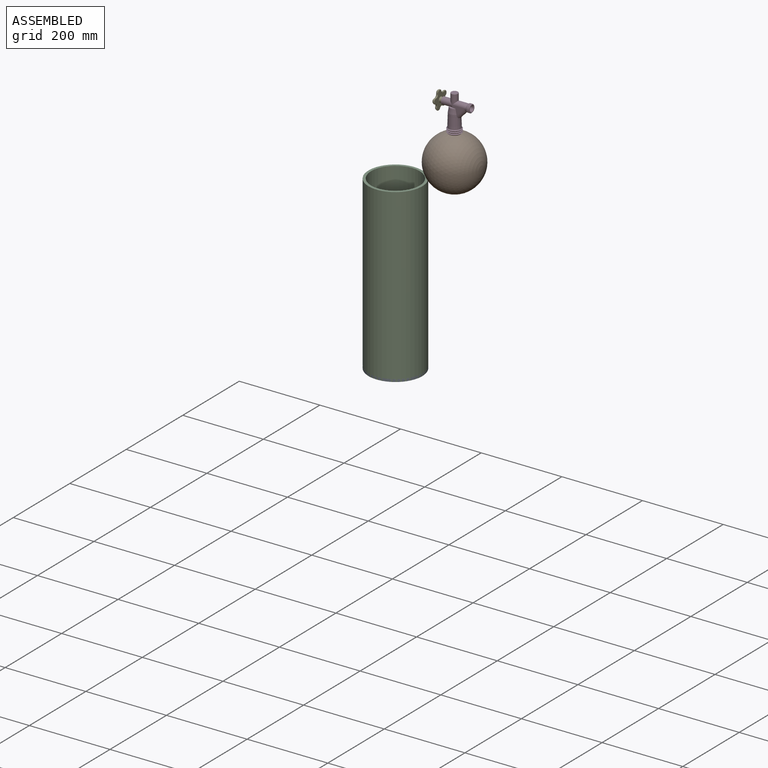
[diagram: assembled view]
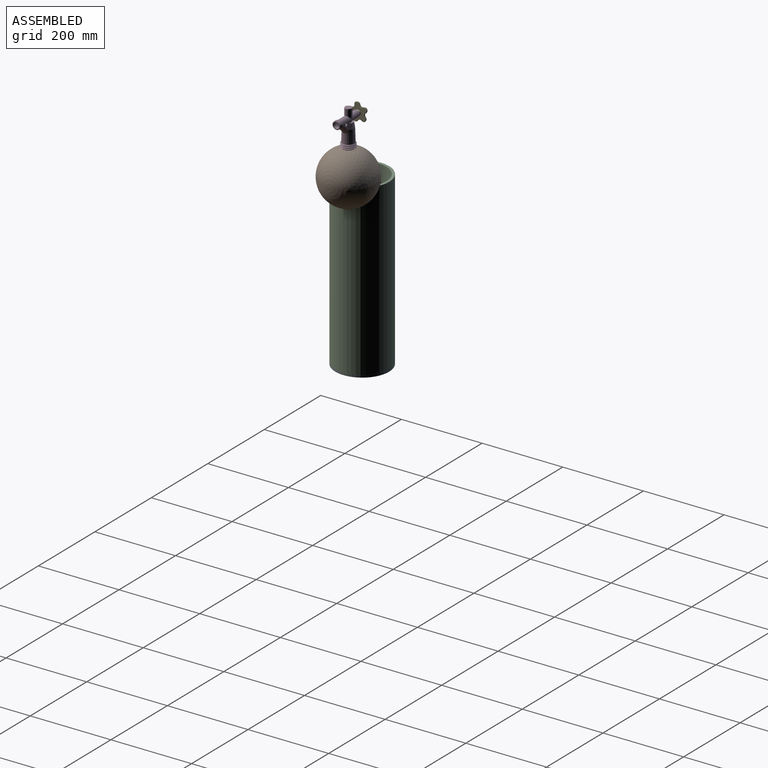
[diagram: assembled view, second angle]
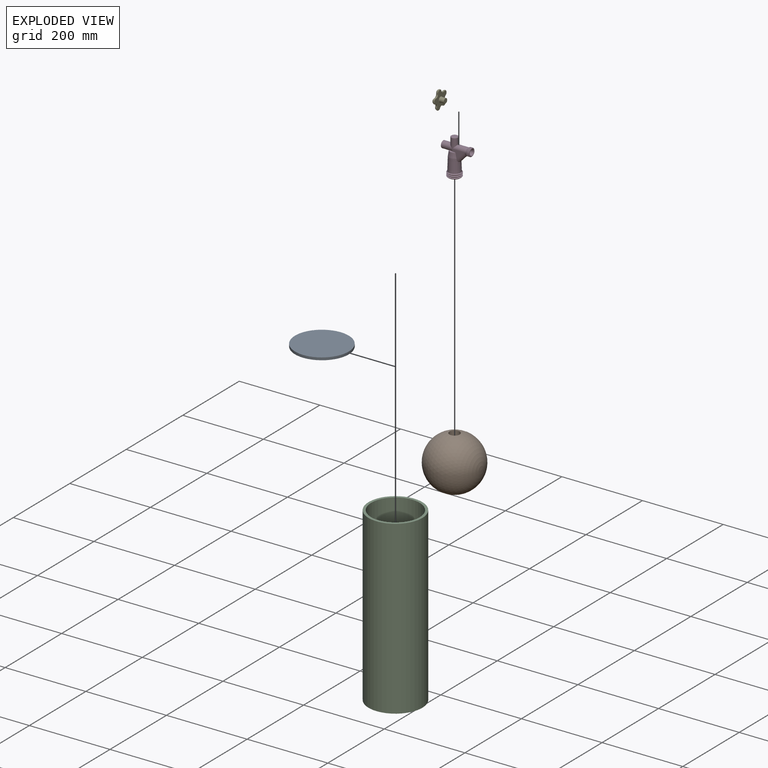
[diagram: exploded view]
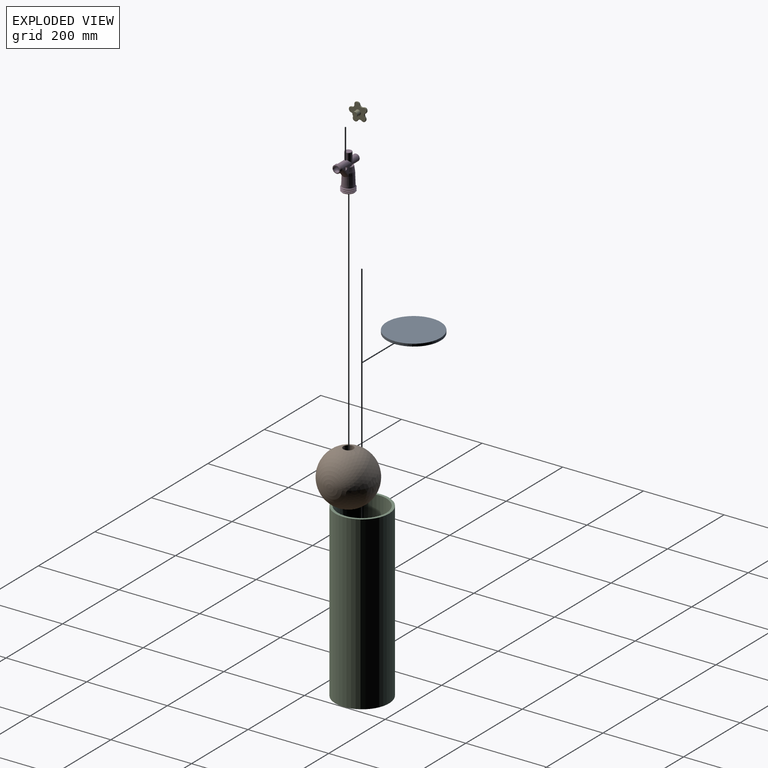
[diagram: exploded view, second angle]
ASSEMBLY  parts=5 mates=3
PART A: 3 faces, bbox 133.4x6.4x133.4 mm
  f0: cylinder r=66.67mm len=133.35mm, axis (0,1,0), area 2660.2mm2, adj f1,f2
  f1: plane 133.35x133.35mm, normal (0,-1,0), area 13966.1mm2, adj f0
  f2: plane 133.35x133.35mm, normal (0,1,0), area 13966.1mm2, adj f0
PART B: 3 faces, bbox 133.4x133.4x133.4 mm
  f0: sphere r=66.67mm, area 55353.1mm2, adj f1
  f1: cylinder r=12.7mm len=65.45mm, axis (0,-1,0), area 5223mm2, adj f0,f2
  f2: plane 25.4x25.4mm, normal (0,1,0), area 506.7mm2, adj f1
PART C: 4 faces, bbox 133.4x425.5x133.4 mm
  f0: cylinder r=66.67mm len=425.45mm, axis (0,1,0), area 178234.4mm2, adj f1,f2
  f1: plane 133.35x133.35mm, normal (0,-1,0), area 2533.5mm2, adj f0,f3
  f2: plane 133.35x133.35mm, normal (0,1,0), area 2533.5mm2, adj f0,f3
  f3: cylinder r=60.32mm len=425.45mm, axis (0,-1,0), area 161259.7mm2, adj f1,f2
PART D: 73 faces, bbox 71.7x34.5x90.7 mm
  f0: plane 23.32x19.94mm, normal (0,1,0), area 196.1mm2, adj f1,f62,f63,f64,f65,f66,f67,f68
  f1: plane 20.06x0.04mm, normal (0,0,-1), area 0mm2, adj f0,f2,f59
  f2: cylinder r=8.5mm len=33.63mm, axis (-1,0,0), area 801mm2, adj f1,f3,f49,f50,f51,f57,f58,f59
  f3: torus R=10.5mm, axis (-1,0,0), area 78.5mm2, adj f2,f4,f49
  f4: cone r=10mm half-angle=45deg, axis (-1,0,0), area 84.4mm2, adj f3,f5
  f5: cone r=9mm half-angle=45deg, axis (1,0,0), area 84.4mm2, adj f4,f6
  f6: cone r=10mm half-angle=45deg, axis (-1,0,0), area 84.4mm2, adj f5,f7
  f7: cone r=9mm half-angle=45deg, axis (1,0,0), area 84.4mm2, adj f6,f8
  f8: cone r=10mm half-angle=45deg, axis (-1,0,0), area 84.4mm2, adj f7,f9
  f9: cone r=9mm half-angle=45deg, axis (1,0,0), area 84.4mm2, adj f8,f10
  f10: cone r=10mm half-angle=45deg, axis (-1,0,0), area 84.4mm2, adj f9,f11
  f11: cone r=9mm half-angle=45deg, axis (1,0,0), area 84.4mm2, adj f10,f12
  f12: plane 18x18mm, normal (-1,0,0), area 80.9mm2, adj f11,f13
  f13: cone r=6.5mm half-angle=28.4deg, axis (-1,0,0), area 85.9mm2, adj f12,f14
  f14: cylinder r=6.5mm len=13mm, axis (-1,0,0), area 319.9mm2, adj f13,f15
  f15: plane 13x13mm, normal (-1,0,0), area 38.1mm2, adj f14,f16
  f16: cone r=5.5mm half-angle=0.3deg, axis (1,0,0), area 60.7mm2, adj f15,f17,f19,f20,f48
  f17: cylinder r=5.5mm len=18.43mm, axis (-1,0,0), area 388.4mm2, adj f16,f18,f19,f20,f48,f72
  f18: cone r=0mm half-angle=74.1deg, axis (-1,0,0), area 98.8mm2, adj f17
  f19: plane 7.33x6.96mm, normal (0.69,0,0.73), area 6.8mm2, adj f16,f17,f20
  f20: cylinder r=6.5mm len=35.41mm, axis (0.69,0,0.73), area 1098.8mm2, adj f16,f17,f19,f21,f48,f72
  f21: cylinder r=9.19mm len=46.9mm, axis (0,0,1), area 2498.8mm2, adj f20,f22,f40,f41,f47
  f22: cone r=10mm half-angle=45deg, axis (0,0,1), area 68.9mm2, adj f21,f23
  f23: cone r=9.19mm half-angle=45deg, axis (0,0,-1), area 68.9mm2, adj f22,f24
  f24: cone r=10mm half-angle=45deg, axis (0,0,1), area 68.9mm2, adj f23,f25
  f25: cone r=9.19mm half-angle=45deg, axis (0,0,-1), area 68.9mm2, adj f24,f26
  f26: cone r=10mm half-angle=45deg, axis (0,0,1), area 68.9mm2, adj f25,f27
  f27: cone r=9.19mm half-angle=45deg, axis (0,0,-1), area 68.9mm2, adj f26,f28
  f28: cone r=10mm half-angle=45deg, axis (0,0,1), area 68.9mm2, adj f27,f29
  f29: cone r=9.19mm half-angle=45deg, axis (0,0,-1), area 68.9mm2, adj f28,f30
  f30: cone r=10mm half-angle=45deg, axis (0,0,1), area 68.9mm2, adj f29,f31
  f31: cone r=9.19mm half-angle=45deg, axis (0,0,-1), area 68.9mm2, adj f30,f32
  f32: cone r=10mm half-angle=45deg, axis (0,0,1), area 68.9mm2, adj f31,f33
  f33: plane 29.64x29.64mm, normal (0,0,1), area 375.6mm2, adj f32,f34
  f34: cone r=14.82mm half-angle=45deg, axis (0,0,-1), area 293.9mm2, adj f33,f35
  f35: cone r=16.9mm half-angle=45deg, axis (0,0,1), area 293.9mm2, adj f34,f36
  f36: cone r=14.82mm half-angle=45deg, axis (0,0,-1), area 293.9mm2, adj f35,f37
  f37: cone r=16.9mm half-angle=45deg, axis (0,0,1), area 293.9mm2, adj f36,f38
  f38: cone r=14.82mm half-angle=45deg, axis (0,0,-1), area 293.9mm2, adj f37,f39
  f39: cone r=16.9mm half-angle=45deg, axis (0,0,1), area 293.9mm2, adj f38,f69
  f40: plane 10.45x2.27mm, normal (-0.69,0,-0.73), area 2.2mm2, adj f21,f47
  f41: plane 18.38x18.38mm, normal (0,0,1), area 152.3mm2, adj f21,f42
  f42: cylinder r=6mm len=12mm, axis (0,0,1), area 290.6mm2, adj f41,f43,f45
  f43: plane 12x6mm, normal (0,0,1), area 56.5mm2, adj f42,f44
  f44: plane 12x6mm, normal (1,0,0), area 56.5mm2, adj f43,f45
  f45: cylinder r=6mm len=28mm, axis (1,0,0), area 999mm2, adj f42,f44,f46
  f46: plane 17x17mm, normal (1,0,0), area 113.9mm2, adj f45,f64
  f47: cylinder r=6.5mm len=9.8mm, axis (0.69,0,0.73), area 1.6mm2, adj f21,f40
  f48: plane 7.33x6.96mm, normal (0.69,0,0.73), area 6.8mm2, adj f16,f17,f20
  f49: bspline ~14.11x9.12mm, area 8.5mm2, adj f2,f3,f71
  f50: bspline ~7.75x4.14mm, area 2mm2, adj f2,f71
  f51: plane 29.71x19.94mm, normal (0,-1,0), area 264.9mm2, adj f2,f52,f53,f54,f55,f56,f57,f59
  f52: torus R=10.85mm, axis (0,0,1), area 28.8mm2, adj f51,f53,f64,f68
  f53: plane 15.76x4.83mm, normal (0,0,-1), area 41.4mm2, adj f51,f52,f54,f64
  f54: plane 6x2.48mm, normal (1,0,0), area 4.6mm2, adj f51,f53,f64
  f55: plane 0.03x0mm, normal (1,0,0), area 0mm2, adj f51,f64
  f56: plane 0.03x0mm, normal (0,0,1), area 0mm2, adj f51,f59
  f57: plane 24x0.05mm, normal (0,0,-1), area 0mm2, adj f2,f51,f59
  f58: plane 9.28x6.75mm, normal (0,1,0), area 18.5mm2, adj f2,f71,f72
  f59: cylinder r=8.5mm len=23.97mm, axis (0,0,-1), area 992.8mm2, adj f1,f2,f51,f56,f57,f60,f62,f63
  f60: torus R=7.5mm, axis (0,0,1), area 80.3mm2, adj f59,f61
  f61: plane 15x15mm, normal (0,0,-1), area 176.7mm2, adj f60
  f62: plane 0.03x0mm, normal (0,0,1), area 0mm2, adj f0,f59
  f63: plane 0.02x0mm, normal (1,0,0), area 0mm2, adj f0,f59
  f64: cylinder r=8.5mm len=27.98mm, axis (-1,0,0), area 1198.8mm2, adj f0,f46,f52,f53,f54,f55,f59,f65
  f65: plane 6x2.48mm, normal (1,0,0), area 4.6mm2, adj f0,f64,f66
  f66: plane 15.76x4.83mm, normal (0,0,-1), area 41.4mm2, adj f0,f64,f65,f67
  f67: torus R=10.85mm, axis (0,0,1), area 28.8mm2, adj f0,f64,f66,f68
  f68: cone r=13.74mm half-angle=8.8deg, axis (0,0,1), area 764.6mm2, adj f0,f51,f52,f64,f67,f69
  f69: cone r=14.82mm half-angle=1.8deg, axis (0,0,1), area 2862.7mm2, adj f0,f39,f51,f68,f70,f71
  f70: plane 9.39x2.27mm, normal (0,0,1), area 5.9mm2, adj f69,f71
  f71: cylinder r=8.5mm len=28.35mm, axis (0.69,0,0.73), area 710.1mm2, adj f0,f49,f50,f51,f58,f69,f70
  f72: cylinder r=4mm len=8mm, axis (0,1,0), area 76.8mm2, adj f0,f17,f20,f58
PART E: 65 faces, bbox 19x46.4x46.7 mm
  f0: plane 32.39x32.04mm, normal (1,0,0), area 385.9mm2, adj f4,f5,f6,f7,f8,f9,f10,f11
  f1: plane 43.42x43.11mm, normal (-1,0,0), area 958.5mm2, adj f34,f35,f36,f37,f38,f39,f40,f41
  f2: cylinder r=6mm len=12mm, axis (-1,0,0), area 414.7mm2, adj f3,f64
  f3: plane 12x12mm, normal (-1,0,0), area 113.1mm2, adj f2
  f4: cylinder r=6.5mm len=5.91mm, axis (0,-0.79,-0.61), area 1.4mm2, adj f0,f5,f6,f34
  f5: torus R=12.5mm, axis (1,0,0), area 139.4mm2, adj f0,f4,f7,f36
  f6: torus R=1.5mm, axis (1,0,0), area 38mm2, adj f0,f4,f8,f35
  f7: cylinder r=6.5mm len=5.91mm, axis (0,-0.5,0.86), area 1.4mm2, adj f0,f5,f9,f38
  f8: torus R=1.5mm, axis (1,0,0), area 52.3mm2, adj f0,f6,f10,f37
  f9: torus R=1.5mm, axis (1,0,0), area 38mm2, adj f0,f7,f11,f40
  f10: torus R=1.5mm, axis (1,0,0), area 38mm2, adj f0,f8,f12,f39
  f11: torus R=1.5mm, axis (1,0,0), area 52.3mm2, adj f0,f9,f13,f42
  f12: cylinder r=6.5mm len=5.91mm, axis (0,0.67,0.75), area 1.4mm2, adj f0,f10,f14,f41
  f13: torus R=1.5mm, axis (1,0,0), area 38mm2, adj f0,f11,f15,f44
  f14: torus R=12.5mm, axis (1,0,0), area 139.4mm2, adj f0,f12,f16,f43
  f15: cylinder r=6.5mm len=6.14mm, axis (0,0.34,-0.94), area 1.4mm2, adj f0,f13,f17,f46
  f16: cylinder r=6.5mm len=5.91mm, axis (0,-0.83,0.56), area 1.4mm2, adj f0,f14,f18,f45
  f17: torus R=12.5mm, axis (1,0,0), area 139.4mm2, adj f0,f15,f19,f48
  f18: torus R=1.5mm, axis (1,0,0), area 38mm2, adj f0,f16,f20,f47
  f19: cylinder r=6.5mm len=6.36mm, axis (0,-0.98,-0.21), area 1.4mm2, adj f0,f17,f21,f50
  f20: torus R=1.5mm, axis (1,0,0), area 52.3mm2, adj f0,f18,f22,f49
  f21: torus R=1.5mm, axis (1,0,0), area 38mm2, adj f0,f19,f23,f52
  f22: torus R=1.5mm, axis (1,0,0), area 38mm2, adj f0,f20,f24,f51
  f23: torus R=1.5mm, axis (1,0,0), area 52.3mm2, adj f0,f21,f25,f54
  f24: cylinder r=6.5mm len=5.98mm, axis (0,0.92,-0.4), area 1.4mm2, adj f0,f22,f26,f53
  f25: torus R=1.5mm, axis (1,0,0), area 38mm2, adj f0,f23,f27,f56
  f26: torus R=12.5mm, axis (1,0,0), area 139.4mm2, adj f0,f24,f28,f55
  f27: cylinder r=6.5mm len=6.47mm, axis (0,1,0.03), area 1.4mm2, adj f0,f25,f29,f58
  f28: cylinder r=6.5mm len=6.26mm, axis (0,0.28,0.96), area 1.4mm2, adj f0,f26,f30,f57
  f29: torus R=12.5mm, axis (1,0,0), area 139.4mm2, adj f0,f27,f31,f60
  f30: torus R=1.5mm, axis (1,0,0), area 38mm2, adj f0,f28,f32,f59
  f31: cylinder r=6.5mm len=6.45mm, axis (0,-0.1,-0.99), area 1.4mm2, adj f0,f29,f33,f62
  f32: torus R=1.5mm, axis (1,0,0), area 52.3mm2, adj f0,f30,f33,f61
  f33: torus R=1.5mm, axis (1,0,0), area 38mm2, adj f0,f31,f32,f63
  f34: cylinder r=1mm len=1.09mm, axis (0,-0.79,-0.61), area 0.2mm2, adj f1,f4,f35,f36
  f35: torus R=6.98mm, axis (1,0,0), area 9.6mm2, adj f1,f6,f34,f37
  f36: torus R=7.02mm, axis (-1,0,0), area 18mm2, adj f1,f5,f34,f38
  f37: torus R=6.98mm, axis (1,0,0), area 13.5mm2, adj f1,f8,f35,f39
  f38: cylinder r=1mm len=1.09mm, axis (0,-0.5,0.86), area 0.2mm2, adj f1,f7,f36,f40
  f39: torus R=6.98mm, axis (1,0,0), area 9.6mm2, adj f1,f10,f37,f41
  f40: torus R=6.98mm, axis (1,0,0), area 9.6mm2, adj f1,f9,f38,f42
  f41: cylinder r=1mm len=1.09mm, axis (0,0.67,0.75), area 0.2mm2, adj f1,f12,f39,f43
  f42: torus R=6.98mm, axis (1,0,0), area 13.5mm2, adj f1,f11,f40,f44
  f43: torus R=7.02mm, axis (-1,0,0), area 18mm2, adj f1,f14,f41,f45
  f44: torus R=6.98mm, axis (1,0,0), area 9.6mm2, adj f1,f13,f42,f46
  f45: cylinder r=1mm len=1.09mm, axis (0,-0.83,0.56), area 0.2mm2, adj f1,f16,f43,f47
  f46: cylinder r=1mm len=1.09mm, axis (0,0.34,-0.94), area 0.2mm2, adj f1,f15,f44,f48
  f47: torus R=6.98mm, axis (1,0,0), area 9.6mm2, adj f1,f18,f45,f49
  f48: torus R=7.02mm, axis (-1,0,0), area 18mm2, adj f1,f17,f46,f50
  f49: torus R=6.98mm, axis (1,0,0), area 13.5mm2, adj f1,f20,f47,f51
  f50: cylinder r=1mm len=1.09mm, axis (0,-0.98,-0.21), area 0.2mm2, adj f1,f19,f48,f52
  f51: torus R=6.98mm, axis (1,0,0), area 9.6mm2, adj f1,f22,f49,f53
  f52: torus R=6.98mm, axis (1,0,0), area 9.6mm2, adj f1,f21,f50,f54
  f53: cylinder r=1mm len=1.09mm, axis (0,0.92,-0.4), area 0.2mm2, adj f1,f24,f51,f55
  f54: torus R=6.98mm, axis (1,0,0), area 13.5mm2, adj f1,f23,f52,f56
  f55: torus R=7.02mm, axis (-1,0,0), area 18mm2, adj f1,f26,f53,f57
  f56: torus R=6.98mm, axis (1,0,0), area 9.6mm2, adj f1,f25,f54,f58
  f57: cylinder r=1mm len=1.09mm, axis (0,0.28,0.96), area 0.2mm2, adj f1,f28,f55,f59
  f58: cylinder r=1mm len=1.09mm, axis (0,1,0.03), area 0.2mm2, adj f1,f27,f56,f60
  f59: torus R=6.98mm, axis (1,0,0), area 9.6mm2, adj f1,f30,f57,f61
  f60: torus R=7.02mm, axis (-1,0,0), area 18mm2, adj f1,f29,f58,f62
  f61: torus R=6.98mm, axis (1,0,0), area 13.5mm2, adj f1,f32,f59,f63
  f62: cylinder r=1mm len=1.09mm, axis (0,-0.1,-0.99), area 0.2mm2, adj f1,f31,f60,f63
  f63: torus R=6.98mm, axis (1,0,0), area 9.6mm2, adj f1,f33,f61,f62
  f64: torus R=7mm, axis (1,0,0), area 62.8mm2, adj f1,f2
PLACE A rot(axis=(0.86,0.36,0.36),98.4deg) t=(-248.66,109.08,-406.57)mm
PLACE B rot(axis=(0.58,0.58,0.58),120deg) t=(-134.2,154.96,62.65)mm
PLACE C rot(axis=(0.28,-0.68,-0.68),148.6deg) t=(-248.66,109.08,12.53)mm
PLACE D rot(axis=(0,-1,0),180deg) t=(-134.2,154.96,193.11)mm
PLACE E rot(axis=(0,-1,0),180deg) t=(-138.7,154.96,193.11)mm
MATE fastened E.f2 <-> D.f2  axis (1,0,0) through (-162.2,154.96,193.11)mm
MATE fastened B.f1 <-> D.f21  axis (0,0,-1) through (-134.2,154.96,128.11)mm
MATE fastened A.f0 <-> C.f3  axis (0,0,-1) through (-248.66,109.08,-412.92)mm
